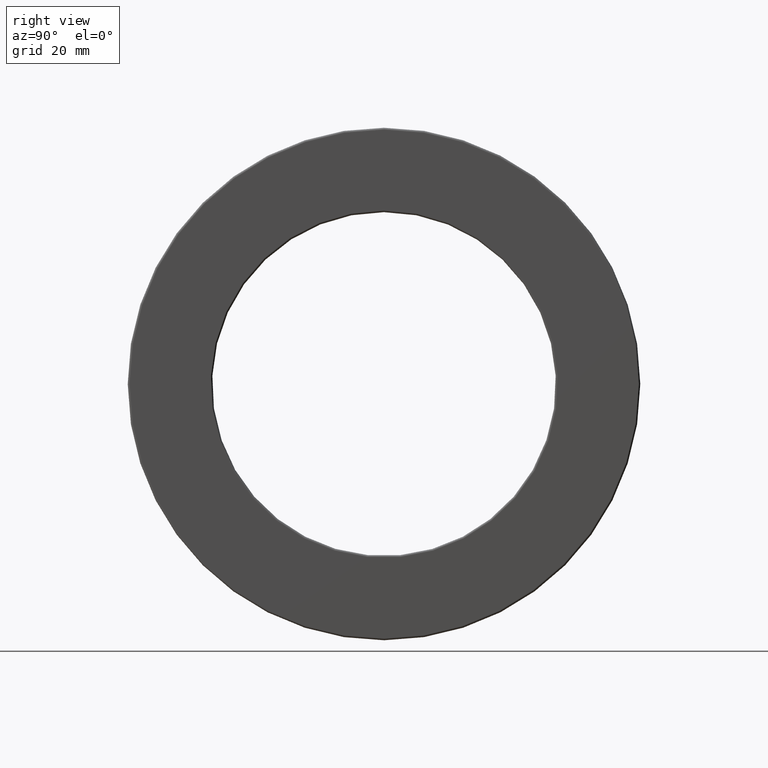
[diagram: clean part render]
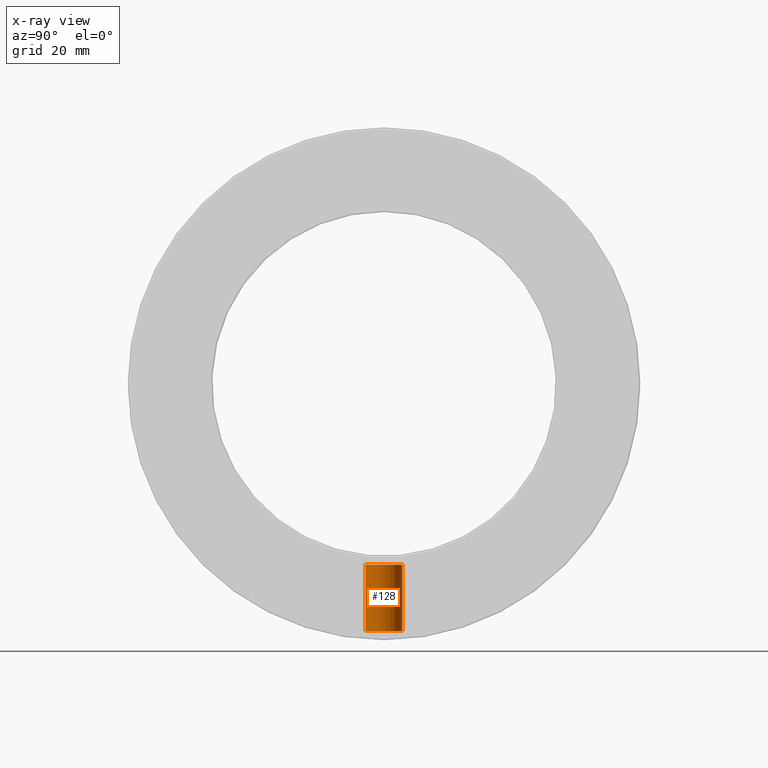
[diagram: x-ray — body ghosted, one internal face saturated and labeled with its STEP entity id]
A machine part, right view, then the same camera in x-ray: the body is ghosted and one INTERNAL B-rep face — a face not visible from any outside direction — is saturated and labeled: STEP entity #128.
In plain terms, the highlighted cylindrical surface (bore or boss wall) has radius 4.7625 mm, axis along (0, -0, -1).
Its self-contained STEP definition (entity closure, byte-faithful):
#38 = DIRECTION ( 'NONE',  ( 0.0000000000000000000, 1.000000000000000000, -2.913971193241881900E-015 ) ) ;
#42 = EDGE_LOOP ( 'NONE', ( #1330 ) ) ;
#98 = DIRECTION ( 'NONE',  ( 0.0000000000000000000, -3.491481338843133400E-015, -1.000000000000000000 ) ) ;
#128 = ADVANCED_FACE ( 'NONE', ( #563, #138 ), #1415, .T. ) ;
#138 = FACE_OUTER_BOUND ( 'NONE', #178, .T. ) ;
#178 = EDGE_LOOP ( 'NONE', ( #997 ) ) ;
#227 = CARTESIAN_POINT ( 'NONE',  ( 0.0000000000000000000, 0.0000000000000000000, 0.0000000000000000000 ) ) ;
#283 = CARTESIAN_POINT ( 'NONE',  ( 0.0000000000000000000, -6.424325663471365100E-015, -1.840000000000000100 ) ) ;
#327 = CIRCLE ( 'NONE', #842, 0.1874999999999999200 ) ;
#416 = EDGE_CURVE ( 'NONE', #1392, #1392, #327, .T. ) ;
#478 = CARTESIAN_POINT ( 'NONE',  ( 0.0000000000000000000, 0.1874999999999936200, -1.840000000000000500 ) ) ;
#505 = CARTESIAN_POINT ( 'NONE',  ( 0.0000000000000000000, -8.796350798047919600E-015, -2.519375000000000100 ) ) ;
#542 = CIRCLE ( 'NONE', #1028, 0.1875000000000000600 ) ;
#563 = FACE_OUTER_BOUND ( 'NONE', #42, .T. ) ;
#564 = DIRECTION ( 'NONE',  ( 0.0000000000000000000, 1.000000000000000000, -3.491481338843133400E-015 ) ) ;
#575 = VERTEX_POINT ( 'NONE', #478 ) ;
#656 = CARTESIAN_POINT ( 'NONE',  ( 0.0000000000000000000, 0.1874999999999910900, -2.519375000000000600 ) ) ;
#727 = DIRECTION ( 'NONE',  ( 0.0000000000000000000, -3.491481338843133400E-015, -1.000000000000000000 ) ) ;
#729 = DIRECTION ( 'NONE',  ( 0.0000000000000000000, 1.000000000000000000, -2.913971193241880000E-015 ) ) ;
#837 = DIRECTION ( 'NONE',  ( 0.0000000000000000000, -3.491481338843133400E-015, -1.000000000000000000 ) ) ;
#842 = AXIS2_PLACEMENT_3D ( 'NONE', #505, #727, #38 ) ;
#903 = AXIS2_PLACEMENT_3D ( 'NONE', #227, #98, #564 ) ;
#997 = ORIENTED_EDGE ( 'NONE', *, *, #416, .F. ) ;
#1028 = AXIS2_PLACEMENT_3D ( 'NONE', #283, #837, #729 ) ;
#1125 = EDGE_CURVE ( 'NONE', #575, #575, #542, .T. ) ;
#1330 = ORIENTED_EDGE ( 'NONE', *, *, #1125, .T. ) ;
#1392 = VERTEX_POINT ( 'NONE', #656 ) ;
#1415 = CYLINDRICAL_SURFACE ( 'NONE', #903, 0.1874999999999999700 ) ;